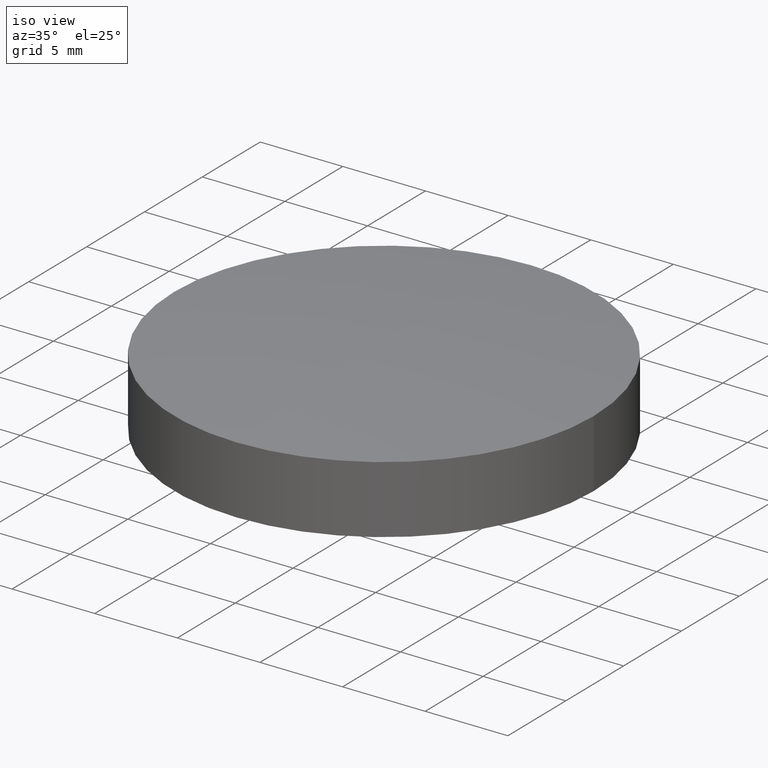
[diagram: clean part render]
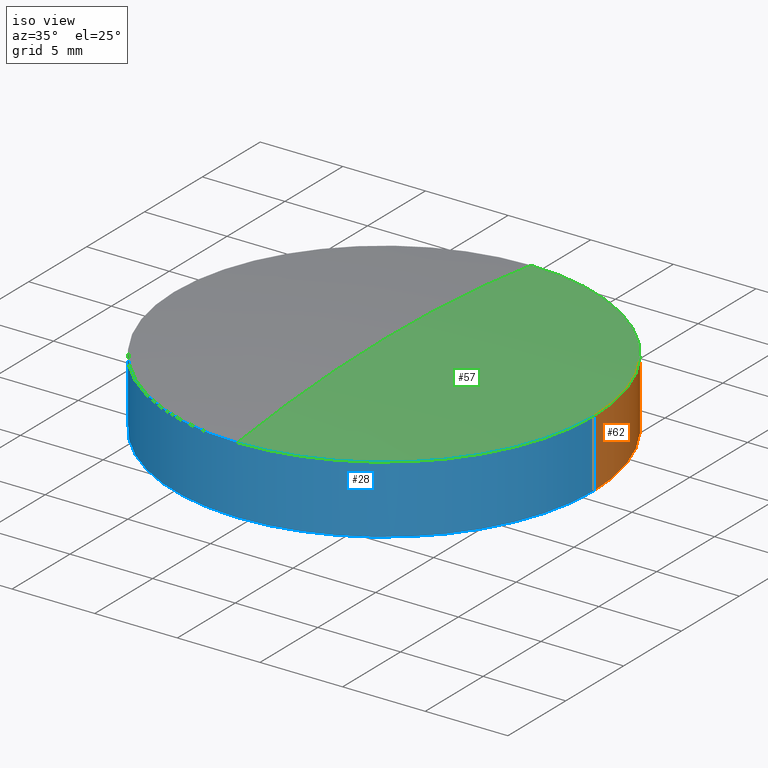
[diagram: same view with three faces highlighted in distinct colors, each labeled with its STEP entity id]
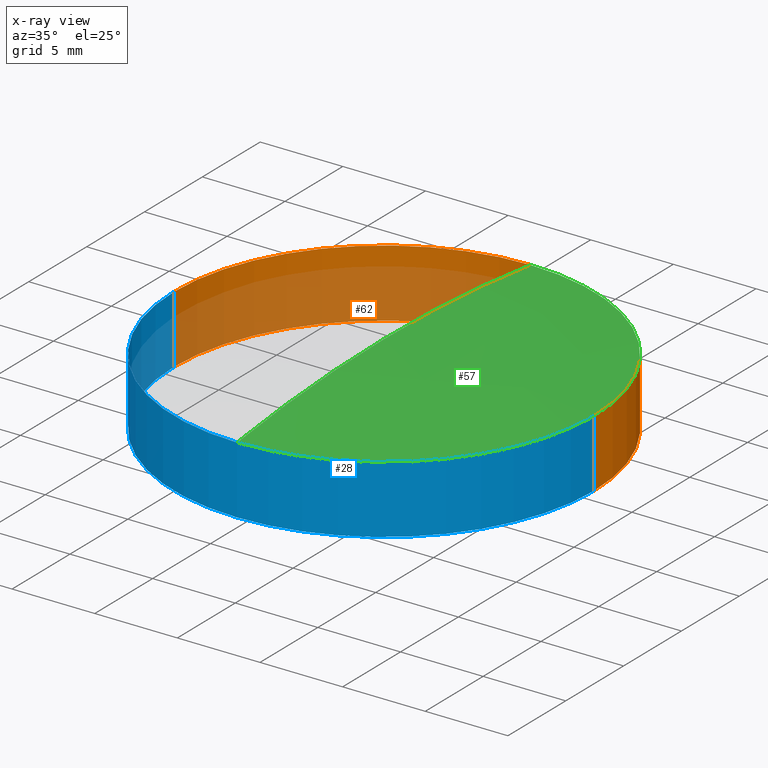
[diagram: x-ray of the same camera — body ghosted, the three highlighted faces saturated]
A machine part, iso view with three faces highlighted in distinct colors.
The next image is the same camera in x-ray (body ghosted, the three faces saturated) — at least one of them is partly hidden behind the body in this view.
Their STEP definitions:

[orange] entity #62 — the highlighted cylindrical surface (partial cylindrical patch) has radius 12.7 mm, axis along (-0, -0, 1).
#6 = ORIENTED_EDGE ( 'NONE', *, *, #19, .T. ) ;
#9 = VERTEX_POINT ( 'NONE', #94 ) ;
#17 = VERTEX_POINT ( 'NONE', #190 ) ;
#19 = EDGE_CURVE ( 'NONE', #17, #25, #123, .T. ) ;
#20 = EDGE_CURVE ( 'NONE', #21, #23, #85, .T. ) ;
#21 = VERTEX_POINT ( 'NONE', #81 ) ;
#22 = EDGE_CURVE ( 'NONE', #25, #23, #141, .T. ) ;
#23 = VERTEX_POINT ( 'NONE', #137 ) ;
#25 = VERTEX_POINT ( 'NONE', #104 ) ;
#26 = ORIENTED_EDGE ( 'NONE', *, *, #20, .F. ) ;
#31 = ORIENTED_EDGE ( 'NONE', *, *, #56, .F. ) ;
#45 = ORIENTED_EDGE ( 'NONE', *, *, #22, .T. ) ;
#48 = ORIENTED_EDGE ( 'NONE', *, *, #49, .F. ) ;
#49 = EDGE_CURVE ( 'NONE', #50, #21, #273, .T. ) ;
#50 = VERTEX_POINT ( 'NONE', #215 ) ;
#56 = EDGE_CURVE ( 'NONE', #9, #50, #218, .T. ) ;
#61 = EDGE_CURVE ( 'NONE', #9, #17, #262, .T. ) ;
#62 = ADVANCED_FACE ( 'NONE', ( #263 ), #239, .T. ) ;
#63 = EDGE_LOOP ( 'NONE', ( #64, #6, #45, #26, #48, #31 ) ) ;
#64 = ORIENTED_EDGE ( 'NONE', *, *, #61, .T. ) ;
#81 = CARTESIAN_POINT ( 'NONE',  ( 0.0000000000000000000, 12.69999999999999200, 1.646140624853117200 ) ) ;
#82 = DIRECTION ( 'NONE',  ( 1.000000000000000000, 0.0000000000000000000, 0.0000000000000000000 ) ) ;
#83 = DIRECTION ( 'NONE',  ( -0.0000000000000000000, -0.0000000000000000000, 1.000000000000000000 ) ) ;
#84 = AXIS2_PLACEMENT_3D ( 'NONE', #124, #83, #82 ) ;
#85 = CIRCLE ( 'NONE', #84, 12.70000000000000100 ) ;
#94 = CARTESIAN_POINT ( 'NONE',  ( 12.70000000000000500, 0.0000000000000000000, -2.455868924448944200 ) ) ;
#104 = CARTESIAN_POINT ( 'NONE',  ( -12.70000000000000600, 1.555250069354419900E-015, -2.455868924448944200 ) ) ;
#119 = DIRECTION ( 'NONE',  ( 1.000000000000000000, 0.0000000000000000000, 0.0000000000000000000 ) ) ;
#120 = DIRECTION ( 'NONE',  ( -0.0000000000000000000, -0.0000000000000000000, 1.000000000000000000 ) ) ;
#121 = CARTESIAN_POINT ( 'NONE',  ( 0.0000000000000000000, 0.0000000000000000000, -2.455868924448944200 ) ) ;
#122 = AXIS2_PLACEMENT_3D ( 'NONE', #121, #120, #119 ) ;
#123 = CIRCLE ( 'NONE', #122, 12.70000000000000500 ) ;
#124 = CARTESIAN_POINT ( 'NONE',  ( 0.0000000000000000000, 0.0000000000000000000, 1.646140624853116300 ) ) ;
#137 = CARTESIAN_POINT ( 'NONE',  ( -12.70000000000000100, 1.555250069354419300E-015, 1.646140624853116300 ) ) ;
#138 = DIRECTION ( 'NONE',  ( -0.0000000000000000000, -0.0000000000000000000, 1.000000000000000000 ) ) ;
#139 = VECTOR ( 'NONE', #138, 1000.000000000000000 ) ;
#140 = CARTESIAN_POINT ( 'NONE',  ( -12.70000000000000300, 1.555250069354419500E-015, 9.860972679289998800 ) ) ;
#141 = LINE ( 'NONE', #140, #139 ) ;
#190 = CARTESIAN_POINT ( 'NONE',  ( 0.0000000000000000000, 12.70000000000001000, -2.455868924448946000 ) ) ;
#204 = DIRECTION ( 'NONE',  ( 1.000000000000000000, 0.0000000000000000000, 0.0000000000000000000 ) ) ;
#205 = DIRECTION ( 'NONE',  ( -0.0000000000000000000, -0.0000000000000000000, 1.000000000000000000 ) ) ;
#215 = CARTESIAN_POINT ( 'NONE',  ( 12.70000000000000100, 0.0000000000000000000, 1.646140624853116300 ) ) ;
#218 = LINE ( 'NONE', #222, #268 ) ;
#222 = CARTESIAN_POINT ( 'NONE',  ( 12.70000000000000300, 0.0000000000000000000, 9.860972679289998800 ) ) ;
#229 = DIRECTION ( 'NONE',  ( 1.000000000000000000, 0.0000000000000000000, 0.0000000000000000000 ) ) ;
#230 = DIRECTION ( 'NONE',  ( -0.0000000000000000000, -0.0000000000000000000, 1.000000000000000000 ) ) ;
#234 = CARTESIAN_POINT ( 'NONE',  ( 0.0000000000000000000, 0.0000000000000000000, 1.646140624853116300 ) ) ;
#236 = DIRECTION ( 'NONE',  ( 1.000000000000000000, 0.0000000000000000000, 0.0000000000000000000 ) ) ;
#237 = DIRECTION ( 'NONE',  ( -0.0000000000000000000, -0.0000000000000000000, 1.000000000000000000 ) ) ;
#238 = AXIS2_PLACEMENT_3D ( 'NONE', #234, #237, #236 ) ;
#239 = CYLINDRICAL_SURFACE ( 'NONE', #243, 12.70000000000000300 ) ;
#242 = CARTESIAN_POINT ( 'NONE',  ( 0.0000000000000000000, 0.0000000000000000000, 9.860972679289998800 ) ) ;
#243 = AXIS2_PLACEMENT_3D ( 'NONE', #242, #205, #204 ) ;
#261 = AXIS2_PLACEMENT_3D ( 'NONE', #278, #230, #229 ) ;
#262 = CIRCLE ( 'NONE', #261, 12.70000000000000500 ) ;
#263 = FACE_OUTER_BOUND ( 'NONE', #63, .T. ) ;
#267 = DIRECTION ( 'NONE',  ( -0.0000000000000000000, -0.0000000000000000000, 1.000000000000000000 ) ) ;
#268 = VECTOR ( 'NONE', #267, 1000.000000000000000 ) ;
#273 = CIRCLE ( 'NONE', #238, 12.70000000000000100 ) ;
#278 = CARTESIAN_POINT ( 'NONE',  ( 0.0000000000000000000, 0.0000000000000000000, -2.455868924448944200 ) ) ;

[blue] entity #28 — the highlighted cylindrical surface (partial cylindrical patch) has radius 12.7 mm, axis along (-0, -0, 1).
#3 = VERTEX_POINT ( 'NONE', #68 ) ;
#8 = EDGE_CURVE ( 'NONE', #13, #9, #93, .T. ) ;
#9 = VERTEX_POINT ( 'NONE', #94 ) ;
#13 = VERTEX_POINT ( 'NONE', #149 ) ;
#22 = EDGE_CURVE ( 'NONE', #25, #23, #141, .T. ) ;
#23 = VERTEX_POINT ( 'NONE', #137 ) ;
#24 = EDGE_CURVE ( 'NONE', #23, #3, #109, .T. ) ;
#25 = VERTEX_POINT ( 'NONE', #104 ) ;
#28 = ADVANCED_FACE ( 'NONE', ( #103 ), #118, .T. ) ;
#29 = EDGE_LOOP ( 'NONE', ( #41, #43, #55, #46, #30, #39 ) ) ;
#30 = ORIENTED_EDGE ( 'NONE', *, *, #47, .F. ) ;
#36 = EDGE_CURVE ( 'NONE', #25, #13, #183, .T. ) ;
#39 = ORIENTED_EDGE ( 'NONE', *, *, #24, .F. ) ;
#41 = ORIENTED_EDGE ( 'NONE', *, *, #22, .F. ) ;
#43 = ORIENTED_EDGE ( 'NONE', *, *, #36, .T. ) ;
#46 = ORIENTED_EDGE ( 'NONE', *, *, #56, .T. ) ;
#47 = EDGE_CURVE ( 'NONE', #3, #50, #280, .T. ) ;
#50 = VERTEX_POINT ( 'NONE', #215 ) ;
#55 = ORIENTED_EDGE ( 'NONE', *, *, #8, .T. ) ;
#56 = EDGE_CURVE ( 'NONE', #9, #50, #218, .T. ) ;
#68 = CARTESIAN_POINT ( 'NONE',  ( -1.555250069354418500E-015, -12.69999999999999200, 1.646140624853117200 ) ) ;
#89 = DIRECTION ( 'NONE',  ( 1.000000000000000000, 0.0000000000000000000, 0.0000000000000000000 ) ) ;
#90 = DIRECTION ( 'NONE',  ( -0.0000000000000000000, -0.0000000000000000000, 1.000000000000000000 ) ) ;
#91 = CARTESIAN_POINT ( 'NONE',  ( 0.0000000000000000000, 0.0000000000000000000, -2.455868924448944200 ) ) ;
#92 = AXIS2_PLACEMENT_3D ( 'NONE', #91, #90, #89 ) ;
#93 = CIRCLE ( 'NONE', #92, 12.70000000000000500 ) ;
#94 = CARTESIAN_POINT ( 'NONE',  ( 12.70000000000000500, 0.0000000000000000000, -2.455868924448944200 ) ) ;
#103 = FACE_OUTER_BOUND ( 'NONE', #29, .T. ) ;
#104 = CARTESIAN_POINT ( 'NONE',  ( -12.70000000000000600, 1.555250069354419900E-015, -2.455868924448944200 ) ) ;
#105 = DIRECTION ( 'NONE',  ( 1.000000000000000000, 0.0000000000000000000, 0.0000000000000000000 ) ) ;
#106 = DIRECTION ( 'NONE',  ( -0.0000000000000000000, -0.0000000000000000000, 1.000000000000000000 ) ) ;
#107 = CARTESIAN_POINT ( 'NONE',  ( 0.0000000000000000000, 0.0000000000000000000, 1.646140624853116300 ) ) ;
#108 = AXIS2_PLACEMENT_3D ( 'NONE', #107, #106, #105 ) ;
#109 = CIRCLE ( 'NONE', #108, 12.70000000000000100 ) ;
#114 = DIRECTION ( 'NONE',  ( 1.000000000000000000, 0.0000000000000000000, 0.0000000000000000000 ) ) ;
#115 = DIRECTION ( 'NONE',  ( -0.0000000000000000000, -0.0000000000000000000, 1.000000000000000000 ) ) ;
#116 = AXIS2_PLACEMENT_3D ( 'NONE', #117, #115, #114 ) ;
#117 = CARTESIAN_POINT ( 'NONE',  ( 0.0000000000000000000, 0.0000000000000000000, 9.860972679289998800 ) ) ;
#118 = CYLINDRICAL_SURFACE ( 'NONE', #116, 12.70000000000000300 ) ;
#137 = CARTESIAN_POINT ( 'NONE',  ( -12.70000000000000100, 1.555250069354419300E-015, 1.646140624853116300 ) ) ;
#138 = DIRECTION ( 'NONE',  ( -0.0000000000000000000, -0.0000000000000000000, 1.000000000000000000 ) ) ;
#139 = VECTOR ( 'NONE', #138, 1000.000000000000000 ) ;
#140 = CARTESIAN_POINT ( 'NONE',  ( -12.70000000000000300, 1.555250069354419500E-015, 9.860972679289998800 ) ) ;
#141 = LINE ( 'NONE', #140, #139 ) ;
#149 = CARTESIAN_POINT ( 'NONE',  ( -1.555250069354420500E-015, -12.70000000000001000, -2.455868924448946000 ) ) ;
#179 = DIRECTION ( 'NONE',  ( 1.000000000000000000, 0.0000000000000000000, 0.0000000000000000000 ) ) ;
#180 = DIRECTION ( 'NONE',  ( -0.0000000000000000000, -0.0000000000000000000, 1.000000000000000000 ) ) ;
#181 = CARTESIAN_POINT ( 'NONE',  ( 0.0000000000000000000, 0.0000000000000000000, -2.455868924448944200 ) ) ;
#182 = AXIS2_PLACEMENT_3D ( 'NONE', #181, #180, #179 ) ;
#183 = CIRCLE ( 'NONE', #182, 12.70000000000000500 ) ;
#215 = CARTESIAN_POINT ( 'NONE',  ( 12.70000000000000100, 0.0000000000000000000, 1.646140624853116300 ) ) ;
#218 = LINE ( 'NONE', #222, #268 ) ;
#222 = CARTESIAN_POINT ( 'NONE',  ( 12.70000000000000300, 0.0000000000000000000, 9.860972679289998800 ) ) ;
#235 = AXIS2_PLACEMENT_3D ( 'NONE', #260, #279, #281 ) ;
#260 = CARTESIAN_POINT ( 'NONE',  ( 0.0000000000000000000, 0.0000000000000000000, 1.646140624853116300 ) ) ;
#267 = DIRECTION ( 'NONE',  ( -0.0000000000000000000, -0.0000000000000000000, 1.000000000000000000 ) ) ;
#268 = VECTOR ( 'NONE', #267, 1000.000000000000000 ) ;
#279 = DIRECTION ( 'NONE',  ( -0.0000000000000000000, -0.0000000000000000000, 1.000000000000000000 ) ) ;
#280 = CIRCLE ( 'NONE', #235, 12.70000000000000100 ) ;
#281 = DIRECTION ( 'NONE',  ( 1.000000000000000000, 0.0000000000000000000, 0.0000000000000000000 ) ) ;

[green] entity #57 — the highlighted spherical surface has radius 100 mm.
#3 = VERTEX_POINT ( 'NONE', #68 ) ;
#21 = VERTEX_POINT ( 'NONE', #81 ) ;
#27 = EDGE_CURVE ( 'NONE', #3, #52, #102, .T. ) ;
#32 = EDGE_LOOP ( 'NONE', ( #37, #38, #33, #51 ) ) ;
#33 = ORIENTED_EDGE ( 'NONE', *, *, #49, .T. ) ;
#37 = ORIENTED_EDGE ( 'NONE', *, *, #27, .F. ) ;
#38 = ORIENTED_EDGE ( 'NONE', *, *, #47, .T. ) ;
#47 = EDGE_CURVE ( 'NONE', #3, #50, #280, .T. ) ;
#49 = EDGE_CURVE ( 'NONE', #50, #21, #273, .T. ) ;
#50 = VERTEX_POINT ( 'NONE', #215 ) ;
#51 = ORIENTED_EDGE ( 'NONE', *, *, #54, .T. ) ;
#52 = VERTEX_POINT ( 'NONE', #214 ) ;
#54 = EDGE_CURVE ( 'NONE', #21, #52, #264, .T. ) ;
#57 = ADVANCED_FACE ( 'NONE', ( #266 ), #253, .T. ) ;
#68 = CARTESIAN_POINT ( 'NONE',  ( -1.555250069354418500E-015, -12.69999999999999200, 1.646140624853117200 ) ) ;
#81 = CARTESIAN_POINT ( 'NONE',  ( 0.0000000000000000000, 12.69999999999999200, 1.646140624853117200 ) ) ;
#101 = AXIS2_PLACEMENT_3D ( 'NONE', #166, #165, #164 ) ;
#102 = CIRCLE ( 'NONE', #101, 100.0000000000000000 ) ;
#164 = DIRECTION ( 'NONE',  ( -1.224606353822377300E-016, -1.000000000000000000, 0.0000000000000000000 ) ) ;
#165 = DIRECTION ( 'NONE',  ( -1.000000000000000000, 1.224606353822377300E-016, 0.0000000000000000000 ) ) ;
#166 = CARTESIAN_POINT ( 'NONE',  ( 0.0000000000000000000, 0.0000000000000000000, -97.54413107555106400 ) ) ;
#214 = CARTESIAN_POINT ( 'NONE',  ( 0.0000000000000000000, 6.123031769111886300E-015, 2.455868924448947800 ) ) ;
#215 = CARTESIAN_POINT ( 'NONE',  ( 12.70000000000000100, 0.0000000000000000000, 1.646140624853116300 ) ) ;
#216 = CARTESIAN_POINT ( 'NONE',  ( 0.0000000000000000000, 0.0000000000000000000, -97.54413107555106400 ) ) ;
#217 = AXIS2_PLACEMENT_3D ( 'NONE', #216, #220, #219 ) ;
#219 = DIRECTION ( 'NONE',  ( 0.0000000000000000000, 0.0000000000000000000, -1.000000000000000000 ) ) ;
#220 = DIRECTION ( 'NONE',  ( 1.000000000000000000, 0.0000000000000000000, 0.0000000000000000000 ) ) ;
#231 = DIRECTION ( 'NONE',  ( 0.0000000000000000000, 1.000000000000000000, 0.0000000000000000000 ) ) ;
#232 = DIRECTION ( 'NONE',  ( -1.000000000000000000, 0.0000000000000000000, 0.0000000000000000000 ) ) ;
#234 = CARTESIAN_POINT ( 'NONE',  ( 0.0000000000000000000, 0.0000000000000000000, 1.646140624853116300 ) ) ;
#235 = AXIS2_PLACEMENT_3D ( 'NONE', #260, #279, #281 ) ;
#236 = DIRECTION ( 'NONE',  ( 1.000000000000000000, 0.0000000000000000000, 0.0000000000000000000 ) ) ;
#237 = DIRECTION ( 'NONE',  ( -0.0000000000000000000, -0.0000000000000000000, 1.000000000000000000 ) ) ;
#238 = AXIS2_PLACEMENT_3D ( 'NONE', #234, #237, #236 ) ;
#253 = SPHERICAL_SURFACE ( 'NONE', #277, 100.0000000000000000 ) ;
#260 = CARTESIAN_POINT ( 'NONE',  ( 0.0000000000000000000, 0.0000000000000000000, 1.646140624853116300 ) ) ;
#264 = CIRCLE ( 'NONE', #217, 100.0000000000000100 ) ;
#266 = FACE_OUTER_BOUND ( 'NONE', #32, .T. ) ;
#273 = CIRCLE ( 'NONE', #238, 12.70000000000000100 ) ;
#276 = CARTESIAN_POINT ( 'NONE',  ( 0.0000000000000000000, 0.0000000000000000000, -97.54413107555106400 ) ) ;
#277 = AXIS2_PLACEMENT_3D ( 'NONE', #276, #232, #231 ) ;
#279 = DIRECTION ( 'NONE',  ( -0.0000000000000000000, -0.0000000000000000000, 1.000000000000000000 ) ) ;
#280 = CIRCLE ( 'NONE', #235, 12.70000000000000100 ) ;
#281 = DIRECTION ( 'NONE',  ( 1.000000000000000000, 0.0000000000000000000, 0.0000000000000000000 ) ) ;